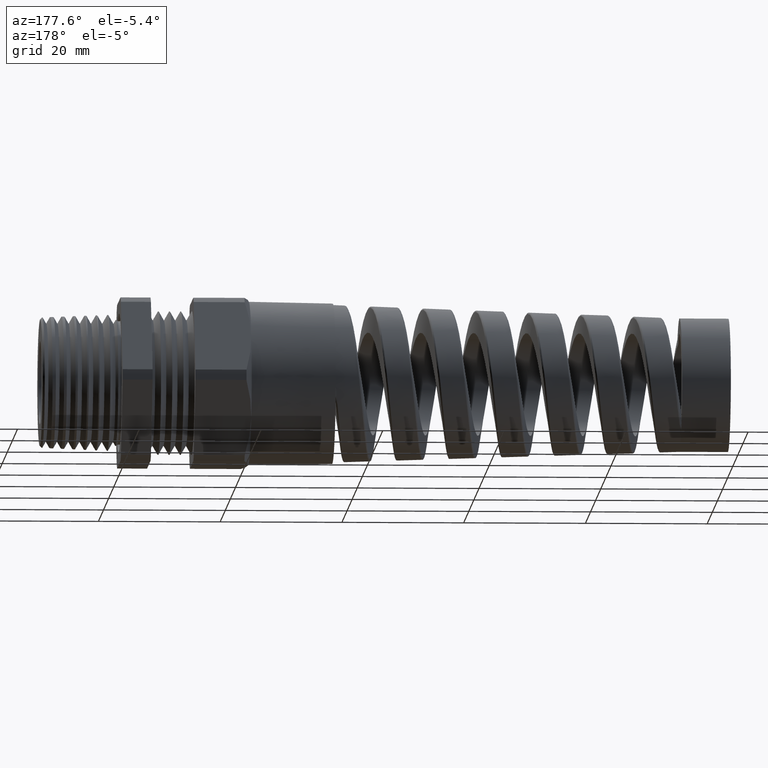
[diagram: clean part render]
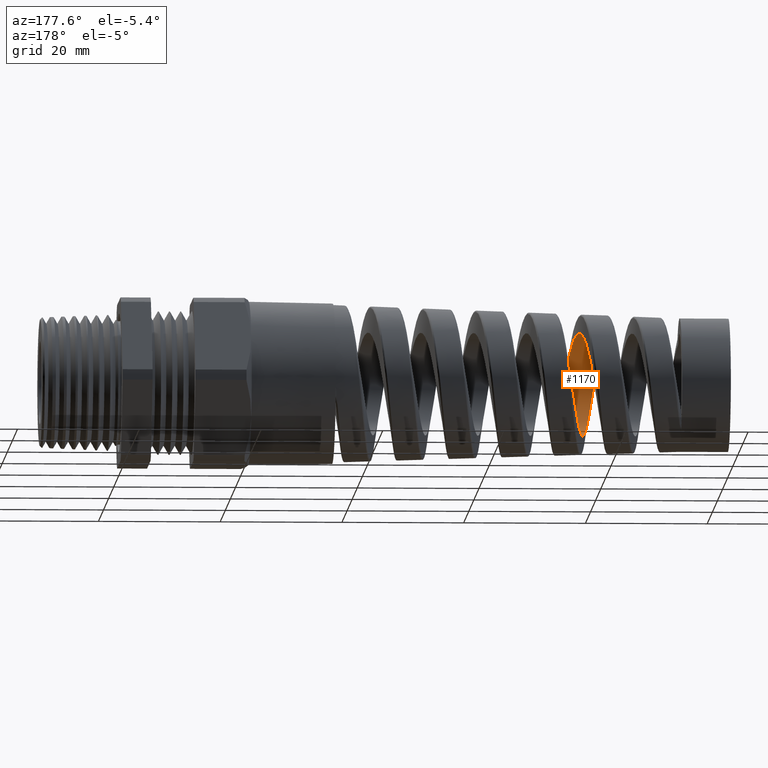
[diagram: same view with one face highlighted and labeled with its STEP entity id]
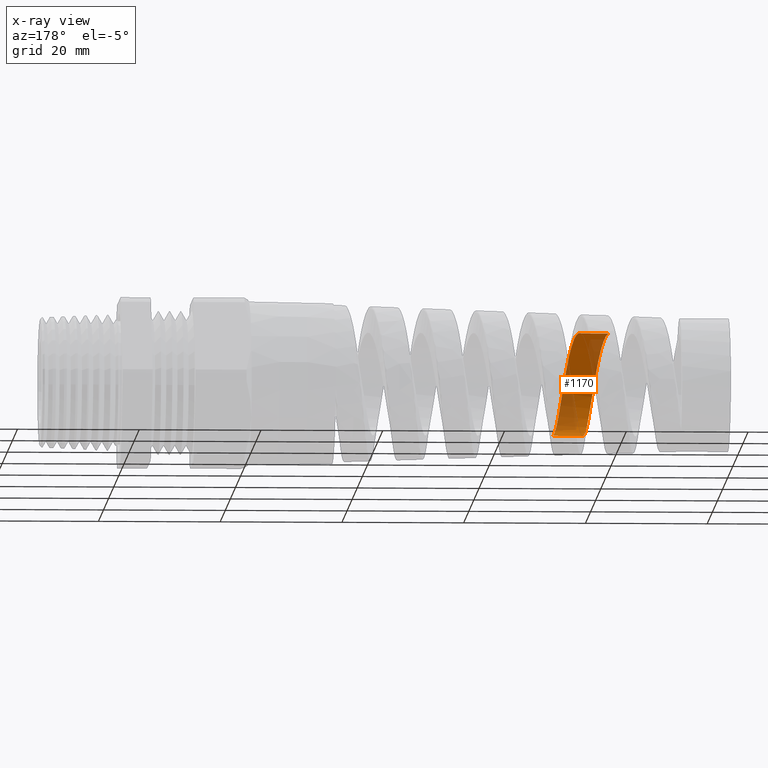
[diagram: x-ray of the same camera — body ghosted, the highlighted face saturated]
A machine part, auxiliary view. The second image highlights one B-rep face of the part: STEP entity #1170.
The next image is the same camera in x-ray: the body ghosted, the highlighted face saturated — about 37% of this face is hidden behind the body in this view.
In plain terms, the highlighted cylindrical surface (partial cylindrical patch) has radius 8.4489 mm, axis along (1, 0, 0).
Its self-contained STEP definition (entity closure, byte-faithful):
#1170 = ADVANCED_FACE ( 'NONE', ( #7666 ), #7665, .F. ) ;
#1171 = VERTEX_POINT ( 'NONE', #7660 ) ;
#1172 = VERTEX_POINT ( 'NONE', #7659 ) ;
#1173 = EDGE_CURVE ( 'NONE', #1201, #1171, #7657, .T. ) ;
#1175 = VERTEX_POINT ( 'NONE', #7656 ) ;
#1176 = EDGE_CURVE ( 'NONE', #1172, #1175, #7612, .T. ) ;
#1178 = EDGE_LOOP ( 'NONE', ( #1185, #1196, #1241, #1187 ) ) ;
#1185 = ORIENTED_EDGE ( 'NONE', *, *, #1176, .F. ) ;
#1187 = ORIENTED_EDGE ( 'NONE', *, *, #1199, .F. ) ;
#1196 = ORIENTED_EDGE ( 'NONE', *, *, #1197, .T. ) ;
#1197 = EDGE_CURVE ( 'NONE', #1172, #1171, #7914, .T. ) ;
#1199 = EDGE_CURVE ( 'NONE', #1175, #1201, #7909, .T. ) ;
#1201 = VERTEX_POINT ( 'NONE', #7905 ) ;
#1241 = ORIENTED_EDGE ( 'NONE', *, *, #1173, .F. ) ;
#7566 = CARTESIAN_POINT ( 'NONE',  ( -2.996962134966090700, -3.981635103011834900E-013, -0.3326356290387456100 ) ) ;
#7567 = CARTESIAN_POINT ( 'NONE',  ( -3.000514428138858000, -0.02188112719423198500, -0.3326356290387189600 ) ) ;
#7568 = CARTESIAN_POINT ( 'NONE',  ( -3.004017426944602900, -0.04346510741204133400, -0.3304966876818429800 ) ) ;
#7569 = CARTESIAN_POINT ( 'NONE',  ( -3.009301364522168700, -0.07538993808635445500, -0.3241612600968684600 ) ) ;
#7570 = CARTESIAN_POINT ( 'NONE',  ( -3.011067456868160800, -0.08595586384395444100, -0.3215246703068370700 ) ) ;
#7571 = CARTESIAN_POINT ( 'NONE',  ( -3.014625932648398600, -0.1069291569385749100, -0.3151708735614480700 ) ) ;
#7572 = CARTESIAN_POINT ( 'NONE',  ( -3.016407667339823000, -0.1172727201536459100, -0.3114673125044595800 ) ) ;
#7573 = CARTESIAN_POINT ( 'NONE',  ( -3.021704820415325600, -0.1474195827560360300, -0.2989769089845811800 ) ) ;
#7574 = CARTESIAN_POINT ( 'NONE',  ( -3.025204954914212200, -0.1665350255847674900, -0.2887682261189901700 ) ) ;
#7575 = CARTESIAN_POINT ( 'NONE',  ( -3.030510195704352800, -0.1937138163974590500, -0.2706289977198304000 ) ) ;
#7576 = CARTESIAN_POINT ( 'NONE',  ( -3.032297653426482500, -0.2025687349217225300, -0.2640680711857668600 ) ) ;
#7577 = CARTESIAN_POINT ( 'NONE',  ( -3.035848825331346000, -0.2194746671639266900, -0.2501937430489458700 ) ) ;
#7578 = CARTESIAN_POINT ( 'NONE',  ( -3.037612216293185300, -0.2275301072766245900, -0.2428869373064131400 ) ) ;
#7579 = CARTESIAN_POINT ( 'NONE',  ( -3.042891938880765600, -0.2505309503537706000, -0.2198884124333020100 ) ) ;
#7580 = CARTESIAN_POINT ( 'NONE',  ( -3.046397778016442200, -0.2643217668371016800, -0.2031286289664110100 ) ) ;
#7581 = CARTESIAN_POINT ( 'NONE',  ( -3.051738132478626600, -0.2826042095509803100, -0.1757882706723697400 ) ) ;
#7582 = CARTESIAN_POINT ( 'NONE',  ( -3.053518207388254100, -0.2882439295102691700, -0.1663734963989392200 ) ) ;
#7583 = CARTESIAN_POINT ( 'NONE',  ( -3.057049117767030500, -0.2984944471447287800, -0.1471929625603465600 ) ) ;
#7584 = CARTESIAN_POINT ( 'NONE',  ( -3.058806792050788600, -0.3031292131339666200, -0.1373918615087560400 ) ) ;
#7585 = CARTESIAN_POINT ( 'NONE',  ( -3.062323966616582500, -0.3114272371214590900, -0.1173751227601210600 ) ) ;
#7586 = CARTESIAN_POINT ( 'NONE',  ( -3.064083405693760000, -0.3150905136563906300, -0.1071594821217128500 ) ) ;
#7587 = CARTESIAN_POINT ( 'NONE',  ( -3.067621152326160100, -0.3214279317124059700, -0.08630916011598460700 ) ) ;
#7588 = CARTESIAN_POINT ( 'NONE',  ( -3.069409267918953500, -0.3241116304857990500, -0.07561464622961187900 ) ) ;
#7589 = CARTESIAN_POINT ( 'NONE',  ( -3.074733585389090700, -0.3305086447754608800, -0.04345509835511011200 ) ) ;
#7590 = CARTESIAN_POINT ( 'NONE',  ( -3.078236602969104000, -0.3326246337580731600, -0.02187489813771363200 ) ) ;
#7591 = CARTESIAN_POINT ( 'NONE',  ( -3.085283508605690000, -0.3326465396302444300, 0.02153921593865208000 ) ) ;
#7592 = CARTESIAN_POINT ( 'NONE',  ( -3.088863207211774800, -0.3304835971540589500, 0.04358594822219476200 ) ) ;
#7593 = CARTESIAN_POINT ( 'NONE',  ( -3.095923800443028300, -0.3219985973224924700, 0.08623251238750687100 ) ) ;
#7594 = CARTESIAN_POINT ( 'NONE',  ( -3.099424305379140600, -0.3157184177869204500, 0.1069748126699177300 ) ) ;
#7595 = CARTESIAN_POINT ( 'NONE',  ( -3.104732477913811000, -0.3032213508897848600, 0.1371936263570052400 ) ) ;
#7596 = CARTESIAN_POINT ( 'NONE',  ( -3.106521001617525500, -0.2985092578386447900, 0.1471666934046325900 ) ) ;
#7597 = CARTESIAN_POINT ( 'NONE',  ( -3.110068634621905700, -0.2882095603202370300, 0.1664363602192961100 ) ) ;
#7598 = CARTESIAN_POINT ( 'NONE',  ( -3.111831561967685300, -0.2826186941141115000, 0.1757572944442855300 ) ) ;
#7599 = CARTESIAN_POINT ( 'NONE',  ( -3.117111404383579000, -0.2645557819170472100, 0.2027971015296271600 ) ) ;
#7600 = CARTESIAN_POINT ( 'NONE',  ( -3.120618097796162600, -0.2508054260231663000, 0.2196018393613798100 ) ) ;
#7601 = CARTESIAN_POINT ( 'NONE',  ( -3.127745086067550000, -0.2197718598981550600, 0.2506564564707417000 ) ) ;
#7602 = CARTESIAN_POINT ( 'NONE',  ( -3.131266817162130500, -0.2029160555860767000, 0.2644638945312869400 ) ) ;
#7603 = CARTESIAN_POINT ( 'NONE',  ( -3.136543933342095700, -0.1758948707670445200, 0.2825329361307509800 ) ) ;
#7604 = CARTESIAN_POINT ( 'NONE',  ( -3.138304115017194200, -0.1665865885950494900, 0.2881219922818535300 ) ) ;
#7605 = CARTESIAN_POINT ( 'NONE',  ( -3.141844147986442500, -0.1473583665997860400, 0.2984139502926159700 ) ) ;
#7606 = CARTESIAN_POINT ( 'NONE',  ( -3.143632905248599800, -0.1373863206803360400, 0.3031347949059176600 ) ) ;
#7607 = CARTESIAN_POINT ( 'NONE',  ( -3.148951349327992600, -0.1071205688455596800, 0.3156716943014197300 ) ) ;
#7608 = CARTESIAN_POINT ( 'NONE',  ( -3.152455221613671200, -0.08637374439471819100, 0.3219590941920965600 ) ) ;
#7609 = CARTESIAN_POINT ( 'NONE',  ( -3.159505767816691800, -0.04377941539915072100, 0.3304564189739217500 ) ) ;
#7610 = CARTESIAN_POINT ( 'NONE',  ( -3.163084960567014800, -0.02172915765154194800, 0.3326356290387120200 ) ) ;
#7611 = CARTESIAN_POINT ( 'NONE',  ( -3.166612926703908000, -5.141327252794918400E-013, 0.3326356290387456100 ) ) ;
#7612 = B_SPLINE_CURVE_WITH_KNOTS ( 'NONE', 3,
 ( #7611, #7610, #7609, #7608, #7607, #7606, #7605, #7604, #7603, #7602, #7601, #7600, #7599, #7598, #7597, #7596, #7595, #7594, #7593, #7592, #7591, #7590, #7589, #7588, #7587, #7586, #7585, #7584, #7583, #7582, #7581, #7580, #7579, #7578, #7577, #7576, #7575, #7574, #7573, #7572, #7571, #7570, #7569, #7568, #7567, #7566 ),
 .UNSPECIFIED., .F., .F.,
 ( 4, 2, 2, 2, 2, 2, 2, 2, 2, 2, 2, 2, 2, 2, 2, 2, 2, 2, 2, 2, 2, 2, 4 ),
 ( 0.07207520347070824100, 0.07374289972097450300, 0.07541059597124075100, 0.07624444409637389000, 0.07707829222150702800, 0.07874598847177330400, 0.08041368472203958000, 0.08124753284717270400, 0.08208138097230585600, 0.08374907722257211900, 0.08541677347283839500, 0.08708446972310467100, 0.08791831784823780900, 0.08875216597337096100, 0.08958601409850409900, 0.09041986222363723700, 0.09208755847390352700, 0.09292140659903666600, 0.09375525472416981800, 0.09542295097443609400, 0.09625679909956923200, 0.09709064722470237000, 0.09875834347496866000 ),
 .UNSPECIFIED. ) ;
#7614 = CARTESIAN_POINT ( 'NONE',  ( -2.971441401308903000, -1.184725641627369500E-014, 0.3326356290387458300 ) ) ;
#7615 = CARTESIAN_POINT ( 'NONE',  ( -2.967899579483324500, -0.02168333057670112800, 0.3326356290387448800 ) ) ;
#7616 = CARTESIAN_POINT ( 'NONE',  ( -2.964368390028088400, -0.04329356749067621300, 0.3305354643611855800 ) ) ;
#7617 = CARTESIAN_POINT ( 'NONE',  ( -2.957199179798953200, -0.08634141123188060500, 0.3219832090234234800 ) ) ;
#7618 = CARTESIAN_POINT ( 'NONE',  ( -2.953654338236031000, -0.1072097803389043800, 0.3156298650225524100 ) ) ;
#7619 = CARTESIAN_POINT ( 'NONE',  ( -2.948343852012328600, -0.1372460562788047600, 0.3031953223402933900 ) ) ;
#7620 = CARTESIAN_POINT ( 'NONE',  ( -2.946572136946034300, -0.1470631820037556200, 0.2985594547954790200 ) ) ;
#7621 = CARTESIAN_POINT ( 'NONE',  ( -2.943009398986382600, -0.1662978844537157100, 0.2882886421194251800 ) ) ;
#7622 = CARTESIAN_POINT ( 'NONE',  ( -2.941209200877946000, -0.1757619253644661600, 0.2826191121848865600 ) ) ;
#7623 = CARTESIAN_POINT ( 'NONE',  ( -2.935856002871668000, -0.2030105142327091300, 0.2644061533190094600 ) ) ;
#7624 = CARTESIAN_POINT ( 'NONE',  ( -2.932332142282266600, -0.2197650220183493300, 0.2506418900303789600 ) ) ;
#7625 = CARTESIAN_POINT ( 'NONE',  ( -2.925236764140515700, -0.2504861629719741800, 0.2199425018051394100 ) ) ;
#7626 = CARTESIAN_POINT ( 'NONE',  ( -2.921633075892932800, -0.2645461901364018500, 0.2028157995451434800 ) ) ;
#7627 = CARTESIAN_POINT ( 'NONE',  ( -2.914532961815278400, -0.2886902668732349600, 0.1666639285312859500 ) ) ;
#7628 = CARTESIAN_POINT ( 'NONE',  ( -2.911009817639747000, -0.2989162124837657600, 0.1475513580076373800 ) ) ;
#7629 = CARTESIAN_POINT ( 'NONE',  ( -2.905663781442334500, -0.3114484066523288100, 0.1173256690034692700 ) ) ;
#7630 = CARTESIAN_POINT ( 'NONE',  ( -2.903862808230871700, -0.3151671045290472300, 0.1069364551570569800 ) ) ;
#7631 = CARTESIAN_POINT ( 'NONE',  ( -2.900295032350525700, -0.3215021494963212200, 0.08603532465229547800 ) ) ;
#7632 = CARTESIAN_POINT ( 'NONE',  ( -2.898522423818260800, -0.3241370126315640800, 0.07549271079734661000 ) ) ;
#7633 = CARTESIAN_POINT ( 'NONE',  ( -2.893211592734799900, -0.3304777660777704600, 0.04359897218085726600 ) ) ;
#7634 = CARTESIAN_POINT ( 'NONE',  ( -2.889680564433423800, -0.3326346591785379600, 0.02198442907925121600 ) ) ;
#7635 = CARTESIAN_POINT ( 'NONE',  ( -2.882501295186364200, -0.3326365982511446100, -0.02195507031802361800 ) ) ;
#7636 = CARTESIAN_POINT ( 'NONE',  ( -2.878965215230338400, -0.3304770299925344200, -0.04360282327620744500 ) ) ;
#7637 = CARTESIAN_POINT ( 'NONE',  ( -2.873655122656138400, -0.3241372505958871100, -0.07549143953605773300 ) ) ;
#7638 = CARTESIAN_POINT ( 'NONE',  ( -2.871883124222259100, -0.3215035306849268700, -0.08602907046753112400 ) ) ;
#7639 = CARTESIAN_POINT ( 'NONE',  ( -2.868318014994922600, -0.3151744233811744600, -0.1069140030806317600 ) ) ;
#7640 = CARTESIAN_POINT ( 'NONE',  ( -2.866516960359882100, -0.3114565650385179900, -0.1173047852532645800 ) ) ;
#7641 = CARTESIAN_POINT ( 'NONE',  ( -2.861166732477669500, -0.2989160716281394300, -0.1475541093972756500 ) ) ;
#7642 = CARTESIAN_POINT ( 'NONE',  ( -2.857643650888336500, -0.2886869225942220200, -0.1666683518634336800 ) ) ;
#7643 = CARTESIAN_POINT ( 'NONE',  ( -2.850546553782060700, -0.2645550513968933900, -0.2028031152871741000 ) ) ;
#7644 = CARTESIAN_POINT ( 'NONE',  ( -2.846942432246706700, -0.2504954720035085800, -0.2199328364177342600 ) ) ;
#7645 = CARTESIAN_POINT ( 'NONE',  ( -2.839843995434911900, -0.2197612735624725500, -0.2506459987137446000 ) ) ;
#7646 = CARTESIAN_POINT ( 'NONE',  ( -2.836321175465251500, -0.2030083970283065900, -0.2644063119673530400 ) ) ;
#7647 = CARTESIAN_POINT ( 'NONE',  ( -2.830971908819329000, -0.1757828248293696000, -0.2826057705400823500 ) ) ;
#7648 = CARTESIAN_POINT ( 'NONE',  ( -2.829171115648375400, -0.1663164402182123500, -0.2882782435219368700 ) ) ;
#7649 = CARTESIAN_POINT ( 'NONE',  ( -2.825605772979967500, -0.1470678757761286800, -0.2985574381750495400 ) ) ;
#7650 = CARTESIAN_POINT ( 'NONE',  ( -2.823833200852206000, -0.1372465641114588300, -0.3031951378317236400 ) ) ;
#7651 = CARTESIAN_POINT ( 'NONE',  ( -2.818522483608087500, -0.1072067423301284500, -0.3156310712552707300 ) ) ;
#7652 = CARTESIAN_POINT ( 'NONE',  ( -2.814986401377930700, -0.08639060331960160500, -0.3219715919973619200 ) ) ;
#7653 = CARTESIAN_POINT ( 'NONE',  ( -2.807809128996645100, -0.04329806784346159500, -0.3305364120883861900 ) ) ;
#7654 = CARTESIAN_POINT ( 'NONE',  ( -2.804276645376056400, -0.02167894265043354300, -0.3326356290387903500 ) ) ;
#7655 = CARTESIAN_POINT ( 'NONE',  ( -2.800735814211196200, 6.877347289440593000E-013, -0.3326356290387456100 ) ) ;
#7656 = CARTESIAN_POINT ( 'NONE',  ( -2.996962134966090700, -3.981635103011834900E-013, -0.3326356290387456100 ) ) ;
#7657 = B_SPLINE_CURVE_WITH_KNOTS ( 'NONE', 3,
 ( #7655, #7654, #7653, #7652, #7651, #7650, #7649, #7648, #7647, #7646, #7645, #7644, #7643, #7642, #7641, #7640, #7639, #7638, #7637, #7636, #7635, #7634, #7633, #7632, #7631, #7630, #7629, #7628, #7627, #7626, #7625, #7624, #7623, #7622, #7621, #7620, #7619, #7618, #7617, #7616, #7615, #7614 ),
 .UNSPECIFIED., .F., .F.,
 ( 4, 2, 2, 2, 2, 2, 2, 2, 2, 2, 2, 2, 2, 2, 2, 2, 2, 2, 2, 2, 4 ),
 ( 0.2633642067892977300, 0.2650373332629290500, 0.2667104597365603200, 0.2675470229733760100, 0.2683835862101916500, 0.2700567126838229200, 0.2717298391574542400, 0.2734029656310855700, 0.2742395288679012100, 0.2750760921047168400, 0.2767492185783481700, 0.2784223450519794400, 0.2792589082887950700, 0.2800954715256107600, 0.2817685979992420300, 0.2834417244728733600, 0.2851148509465046300, 0.2859514141833202600, 0.2867879774201359000, 0.2884611038937672200, 0.2901342303673984900 ),
 .UNSPECIFIED. ) ;
#7659 = CARTESIAN_POINT ( 'NONE',  ( -3.166612926703908000, -5.141327252794918400E-013, 0.3326356290387456100 ) ) ;
#7660 = CARTESIAN_POINT ( 'NONE',  ( -2.971441401308903000, -1.184725641627369500E-014, 0.3326356290387458300 ) ) ;
#7661 = DIRECTION ( 'NONE',  ( 0.0000000000000000000, 0.0000000000000000000, -1.000000000000000000 ) ) ;
#7662 = DIRECTION ( 'NONE',  ( 1.000000000000000000, 0.0000000000000000000, 0.0000000000000000000 ) ) ;
#7663 = CARTESIAN_POINT ( 'NONE',  ( 0.4924815508901369000, 0.0000000000000000000, 0.0000000000000000000 ) ) ;
#7664 = AXIS2_PLACEMENT_3D ( 'NONE', #7663, #7662, #7661 ) ;
#7665 = CYLINDRICAL_SURFACE ( 'NONE', #7664, 0.3326356290387456100 ) ;
#7666 = FACE_OUTER_BOUND ( 'NONE', #1178, .T. ) ;
#7905 = CARTESIAN_POINT ( 'NONE',  ( -2.800735814211196200, 6.877347289440593000E-013, -0.3326356290387456100 ) ) ;
#7906 = DIRECTION ( 'NONE',  ( 1.000000000000000000, 0.0000000000000000000, 0.0000000000000000000 ) ) ;
#7907 = VECTOR ( 'NONE', #7906, 39.37007874015748100 ) ;
#7908 = CARTESIAN_POINT ( 'NONE',  ( 0.4924815508901369000, 0.0000000000000000000, -0.3326356290387456100 ) ) ;
#7909 = LINE ( 'NONE', #7908, #7907 ) ;
#7911 = DIRECTION ( 'NONE',  ( 1.000000000000000000, 0.0000000000000000000, 0.0000000000000000000 ) ) ;
#7912 = VECTOR ( 'NONE', #7911, 39.37007874015748100 ) ;
#7913 = CARTESIAN_POINT ( 'NONE',  ( 0.4924815508901369000, 4.073611583846661800E-017, 0.3326356290387456100 ) ) ;
#7914 = LINE ( 'NONE', #7913, #7912 ) ;